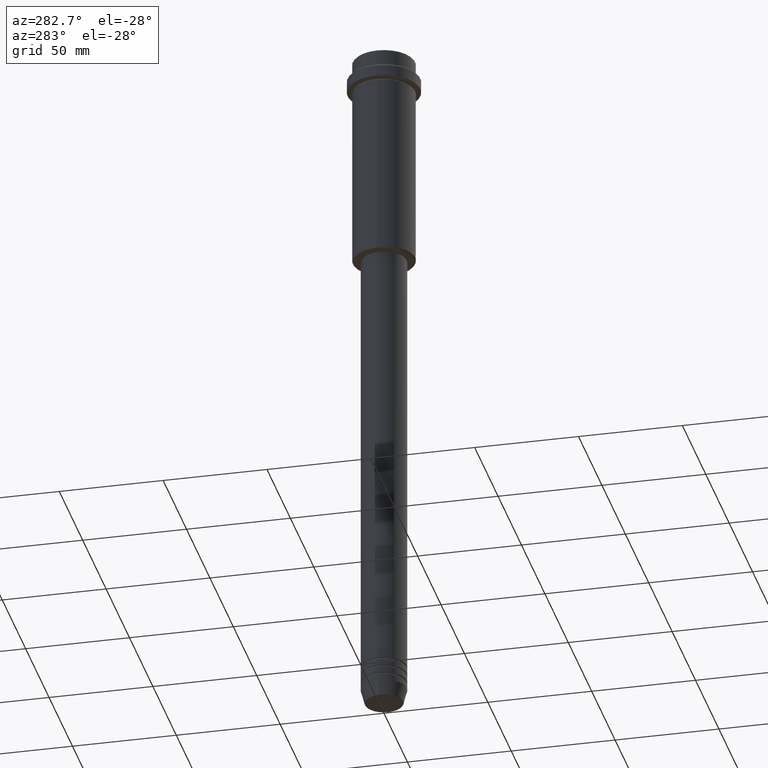
[diagram: clean part render]
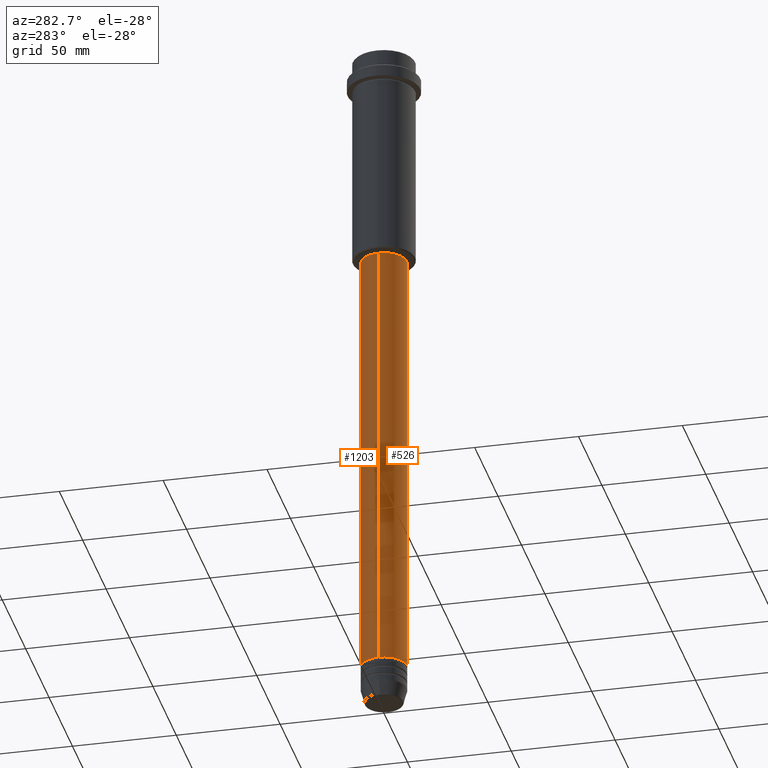
[diagram: same view with one multi-face feature highlighted, each face labeled with its STEP entity id]
A machine part, auxiliary view. The highlighted faces form ONE feature: a constant-radius fillet chain: 2 tangent blend faces with common blend radius 11 mm. The faces share edges in the B-rep.
Their STEP definitions:
[1] entity #1203 (Cylinder):
#52 = VECTOR ( 'NONE', #1232, 1000.000000000000000 ) ;
#96 = DIRECTION ( 'NONE',  ( 1.000000000000000000, 0.000000000000000000, 0.000000000000000000 ) ) ;
#116 = DIRECTION ( 'NONE',  ( 1.000000000000000000, 0.000000000000000000, 0.000000000000000000 ) ) ;
#192 = DIRECTION ( 'NONE',  ( -0.000000000000000000, -0.000000000000000000, 1.000000000000000000 ) ) ;
#195 = VERTEX_POINT ( 'NONE', #1230 ) ;
#199 = FACE_OUTER_BOUND ( 'NONE', #990, .T. ) ;
#224 = CARTESIAN_POINT ( 'NONE',  ( 0.000000000000000000, 0.000000000000000000, -320.9999999999998863 ) ) ;
#244 = CARTESIAN_POINT ( 'NONE',  ( 11.00000000000000000, 0.000000000000000000, 0.000000000000000000 ) ) ;
#247 = EDGE_CURVE ( 'NONE', #753, #593, #599, .T. ) ;
#251 = LINE ( 'NONE', #244, #827 ) ;
#253 = ORIENTED_EDGE ( 'NONE', *, *, #868, .T. ) ;
#254 = LINE ( 'NONE', #1338, #52 ) ;
#308 = CARTESIAN_POINT ( 'NONE',  ( 0.000000000000000000, 0.000000000000000000, -105.9999999999999574 ) ) ;
#322 = CYLINDRICAL_SURFACE ( 'NONE', #440, 11.00000000000000000 ) ;
#346 = AXIS2_PLACEMENT_3D ( 'NONE', #308, #192, #1267 ) ;
#358 = CARTESIAN_POINT ( 'NONE',  ( -10.99999999999999822, 1.347111479062088207E-15, -105.9999999999999574 ) ) ;
#417 = AXIS2_PLACEMENT_3D ( 'NONE', #224, #1194, #116 ) ;
#438 = DIRECTION ( 'NONE',  ( -0.000000000000000000, -0.000000000000000000, 1.000000000000000000 ) ) ;
#440 = AXIS2_PLACEMENT_3D ( 'NONE', #1077, #438, #96 ) ;
#503 = ORIENTED_EDGE ( 'NONE', *, *, #1281, .F. ) ;
#528 = VERTEX_POINT ( 'NONE', #358 ) ;
#593 = VERTEX_POINT ( 'NONE', #1287 ) ;
#599 = CIRCLE ( 'NONE', #417, 11.00000000000000000 ) ;
#673 = EDGE_CURVE ( 'NONE', #195, #528, #938, .T. ) ;
#753 = VERTEX_POINT ( 'NONE', #889 ) ;
#827 = VECTOR ( 'NONE', #914, 1000.000000000000000 ) ;
#868 = EDGE_CURVE ( 'NONE', #593, #528, #254, .T. ) ;
#889 = CARTESIAN_POINT ( 'NONE',  ( 11.00000000000000000, 0.000000000000000000, -320.9999999999998863 ) ) ;
#913 = ORIENTED_EDGE ( 'NONE', *, *, #247, .T. ) ;
#914 = DIRECTION ( 'NONE',  ( -0.000000000000000000, -0.000000000000000000, 1.000000000000000000 ) ) ;
#938 = CIRCLE ( 'NONE', #346, 10.99999999999999822 ) ;
#990 = EDGE_LOOP ( 'NONE', ( #913, #253, #1127, #503 ) ) ;
#1077 = CARTESIAN_POINT ( 'NONE',  ( 0.000000000000000000, 0.000000000000000000, 0.000000000000000000 ) ) ;
#1127 = ORIENTED_EDGE ( 'NONE', *, *, #673, .F. ) ;
#1194 = DIRECTION ( 'NONE',  ( -0.000000000000000000, -0.000000000000000000, 1.000000000000000000 ) ) ;
#1203 = ADVANCED_FACE ( 'NONE', ( #199 ), #322, .T. ) ;
#1230 = CARTESIAN_POINT ( 'NONE',  ( 10.99999999999999822, 0.000000000000000000, -105.9999999999999574 ) ) ;
#1232 = DIRECTION ( 'NONE',  ( -0.000000000000000000, -0.000000000000000000, 1.000000000000000000 ) ) ;
#1267 = DIRECTION ( 'NONE',  ( 1.000000000000000000, 0.000000000000000000, 0.000000000000000000 ) ) ;
#1281 = EDGE_CURVE ( 'NONE', #753, #195, #251, .T. ) ;
#1287 = CARTESIAN_POINT ( 'NONE',  ( -11.00000000000000000, 1.347111479062088405E-15, -320.9999999999998863 ) ) ;
#1338 = CARTESIAN_POINT ( 'NONE',  ( -11.00000000000000000, 1.347111479062088405E-15, 0.000000000000000000 ) ) ;
[2] entity #526 (Cylinder):
#40 = DIRECTION ( 'NONE',  ( 1.000000000000000000, 0.000000000000000000, 0.000000000000000000 ) ) ;
#52 = VECTOR ( 'NONE', #1232, 1000.000000000000000 ) ;
#114 = AXIS2_PLACEMENT_3D ( 'NONE', #1315, #243, #880 ) ;
#195 = VERTEX_POINT ( 'NONE', #1230 ) ;
#243 = DIRECTION ( 'NONE',  ( -0.000000000000000000, -0.000000000000000000, 1.000000000000000000 ) ) ;
#244 = CARTESIAN_POINT ( 'NONE',  ( 11.00000000000000000, 0.000000000000000000, 0.000000000000000000 ) ) ;
#251 = LINE ( 'NONE', #244, #827 ) ;
#254 = LINE ( 'NONE', #1338, #52 ) ;
#358 = CARTESIAN_POINT ( 'NONE',  ( -10.99999999999999822, 1.347111479062088207E-15, -105.9999999999999574 ) ) ;
#369 = AXIS2_PLACEMENT_3D ( 'NONE', #699, #1005, #40 ) ;
#489 = EDGE_CURVE ( 'NONE', #593, #753, #1396, .T. ) ;
#526 = ADVANCED_FACE ( 'NONE', ( #687 ), #799, .T. ) ;
#528 = VERTEX_POINT ( 'NONE', #358 ) ;
#542 = EDGE_LOOP ( 'NONE', ( #1198, #1337, #556, #1123 ) ) ;
#555 = DIRECTION ( 'NONE',  ( -0.000000000000000000, -0.000000000000000000, 1.000000000000000000 ) ) ;
#556 = ORIENTED_EDGE ( 'NONE', *, *, #1281, .T. ) ;
#593 = VERTEX_POINT ( 'NONE', #1287 ) ;
#625 = CIRCLE ( 'NONE', #804, 10.99999999999999822 ) ;
#666 = CARTESIAN_POINT ( 'NONE',  ( 0.000000000000000000, 0.000000000000000000, -105.9999999999999574 ) ) ;
#687 = FACE_OUTER_BOUND ( 'NONE', #542, .T. ) ;
#699 = CARTESIAN_POINT ( 'NONE',  ( 0.000000000000000000, 0.000000000000000000, 0.000000000000000000 ) ) ;
#752 = EDGE_CURVE ( 'NONE', #528, #195, #625, .T. ) ;
#753 = VERTEX_POINT ( 'NONE', #889 ) ;
#799 = CYLINDRICAL_SURFACE ( 'NONE', #369, 11.00000000000000000 ) ;
#804 = AXIS2_PLACEMENT_3D ( 'NONE', #666, #555, #1319 ) ;
#827 = VECTOR ( 'NONE', #914, 1000.000000000000000 ) ;
#868 = EDGE_CURVE ( 'NONE', #593, #528, #254, .T. ) ;
#880 = DIRECTION ( 'NONE',  ( 1.000000000000000000, 0.000000000000000000, 0.000000000000000000 ) ) ;
#889 = CARTESIAN_POINT ( 'NONE',  ( 11.00000000000000000, 0.000000000000000000, -320.9999999999998863 ) ) ;
#914 = DIRECTION ( 'NONE',  ( -0.000000000000000000, -0.000000000000000000, 1.000000000000000000 ) ) ;
#1005 = DIRECTION ( 'NONE',  ( -0.000000000000000000, -0.000000000000000000, 1.000000000000000000 ) ) ;
#1123 = ORIENTED_EDGE ( 'NONE', *, *, #752, .F. ) ;
#1198 = ORIENTED_EDGE ( 'NONE', *, *, #868, .F. ) ;
#1230 = CARTESIAN_POINT ( 'NONE',  ( 10.99999999999999822, 0.000000000000000000, -105.9999999999999574 ) ) ;
#1232 = DIRECTION ( 'NONE',  ( -0.000000000000000000, -0.000000000000000000, 1.000000000000000000 ) ) ;
#1281 = EDGE_CURVE ( 'NONE', #753, #195, #251, .T. ) ;
#1287 = CARTESIAN_POINT ( 'NONE',  ( -11.00000000000000000, 1.347111479062088405E-15, -320.9999999999998863 ) ) ;
#1315 = CARTESIAN_POINT ( 'NONE',  ( 0.000000000000000000, 0.000000000000000000, -320.9999999999998863 ) ) ;
#1319 = DIRECTION ( 'NONE',  ( 1.000000000000000000, 0.000000000000000000, 0.000000000000000000 ) ) ;
#1337 = ORIENTED_EDGE ( 'NONE', *, *, #489, .T. ) ;
#1338 = CARTESIAN_POINT ( 'NONE',  ( -11.00000000000000000, 1.347111479062088405E-15, 0.000000000000000000 ) ) ;
#1396 = CIRCLE ( 'NONE', #114, 11.00000000000000000 ) ;